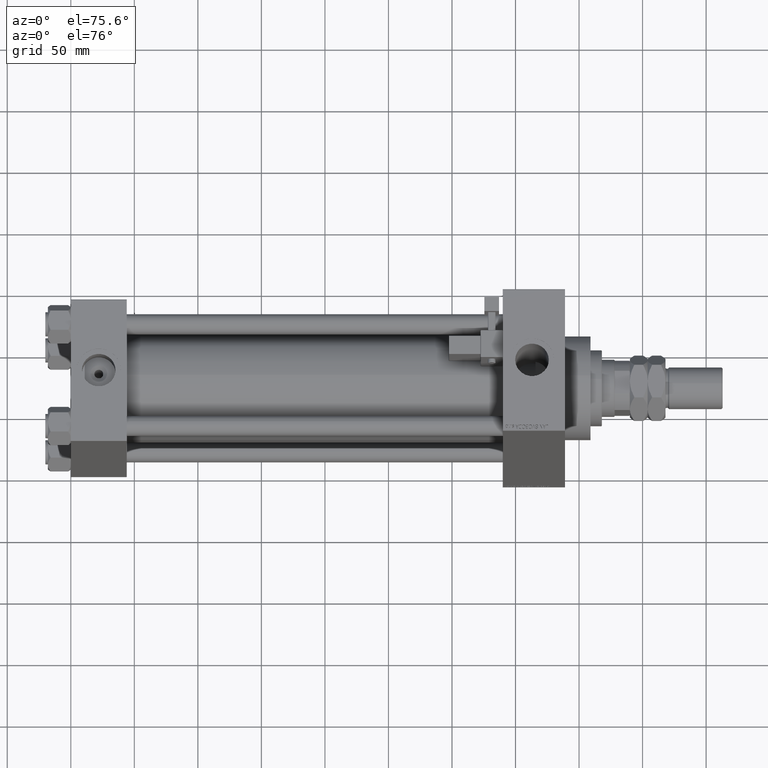
[diagram: clean part render]
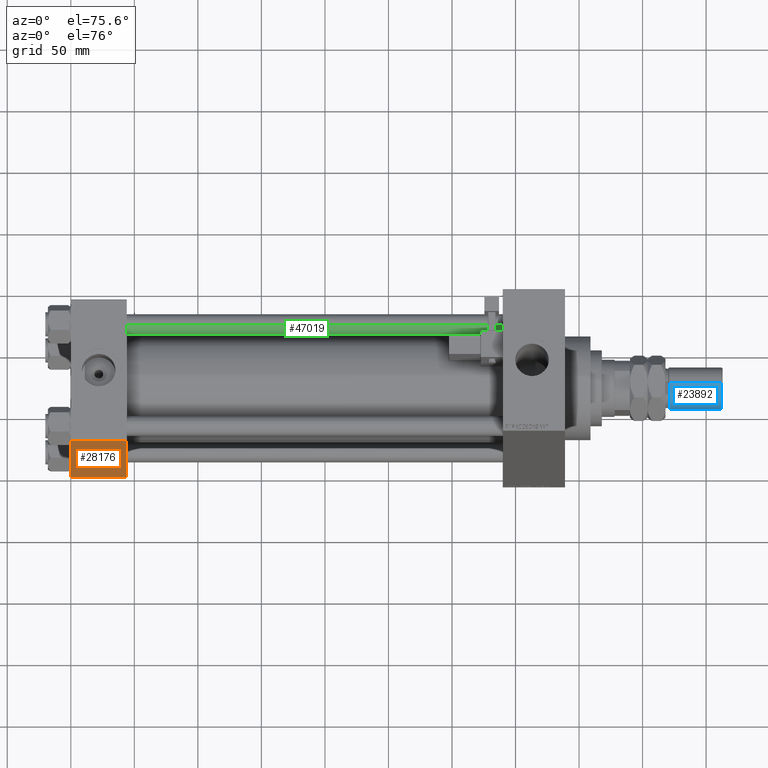
[diagram: same view with three faces highlighted in distinct colors, each labeled with its STEP entity id]
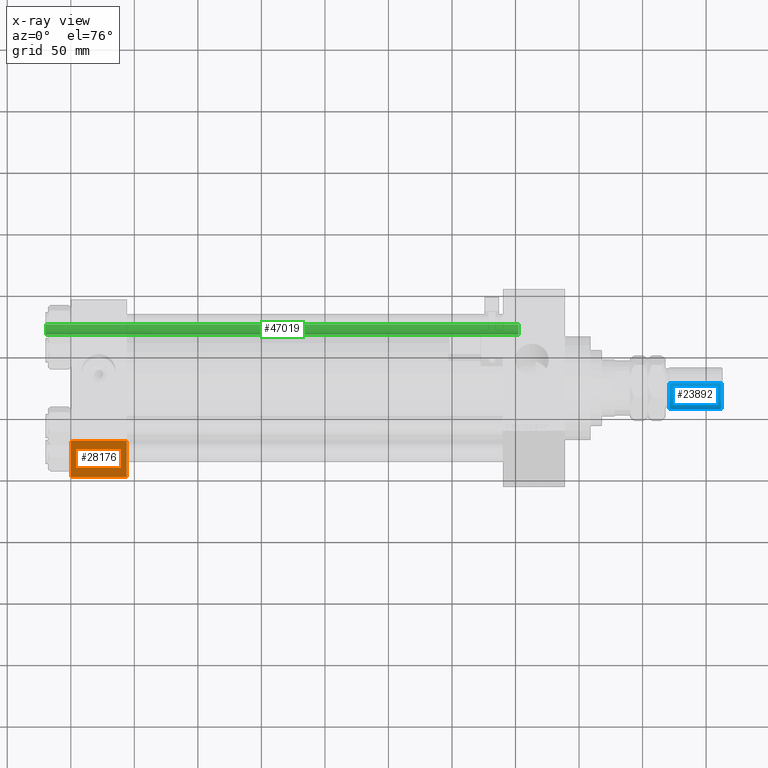
[diagram: x-ray of the same camera — body ghosted, the three highlighted faces saturated]
A machine part, auxiliary view with three faces highlighted in distinct colors.
The next image is the same camera in x-ray (body ghosted, the three faces saturated) — at least one of them is partly hidden behind the body in this view.
Their STEP definitions:

[orange] entity #28176 — the highlighted planar face has unit normal (0, 1, 0).
#91 = ORIENTED_EDGE ( 'NONE', *, *, #37428, .T. ) ;
#1053 = FACE_OUTER_BOUND ( 'NONE', #32362, .T. ) ;
#2360 = EDGE_CURVE ( 'NONE', #14752, #27990, #5626, .T. ) ;
#3387 = CARTESIAN_POINT ( 'NONE',  ( 44.00000000000000000, -57.50000000000000711, 57.00000000000000711 ) ) ;
#5626 = LINE ( 'NONE', #33544, #9493 ) ;
#6625 = ORIENTED_EDGE ( 'NONE', *, *, #2360, .T. ) ;
#9493 = VECTOR ( 'NONE', #29756, 1000.000000000000000 ) ;
#10677 = AXIS2_PLACEMENT_3D ( 'NONE', #21101, #17035, #25169 ) ;
#14148 = VERTEX_POINT ( 'NONE', #32527 ) ;
#14752 = VERTEX_POINT ( 'NONE', #3387 ) ;
#16771 = PLANE ( 'NONE',  #10677 ) ;
#17035 = DIRECTION ( 'NONE',  ( -0.000000000000000000, 1.000000000000000000, 0.000000000000000000 ) ) ;
#19566 = VECTOR ( 'NONE', #26390, 1000.000000000000000 ) ;
#21101 = CARTESIAN_POINT ( 'NONE',  ( 44.00000000000000000, -57.50000000000000711, 57.49999999999999289 ) ) ;
#21576 = ORIENTED_EDGE ( 'NONE', *, *, #30651, .F. ) ;
#25169 = DIRECTION ( 'NONE',  ( 0.000000000000000000, -0.000000000000000000, 1.000000000000000000 ) ) ;
#25913 = LINE ( 'NONE', #38686, #33035 ) ;
#26390 = DIRECTION ( 'NONE',  ( 0.000000000000000000, 0.000000000000000000, -1.000000000000000000 ) ) ;
#27990 = VERTEX_POINT ( 'NONE', #30906 ) ;
#28107 = VECTOR ( 'NONE', #42801, 1000.000000000000000 ) ;
#28176 = ADVANCED_FACE ( 'NONE', ( #1053 ), #16771, .F. ) ;
#29756 = DIRECTION ( 'NONE',  ( -1.000000000000000000, 0.000000000000000000, 0.000000000000000000 ) ) ;
#30651 = EDGE_CURVE ( 'NONE', #14752, #41868, #34099, .T. ) ;
#30906 = CARTESIAN_POINT ( 'NONE',  ( 0.000000000000000000, -57.50000000000000711, 57.00000000000000711 ) ) ;
#30985 = CARTESIAN_POINT ( 'NONE',  ( 0.000000000000000000, -57.50000000000000711, 57.49999999999999289 ) ) ;
#32362 = EDGE_LOOP ( 'NONE', ( #91, #35747, #21576, #6625 ) ) ;
#32527 = CARTESIAN_POINT ( 'NONE',  ( 0.000000000000000000, -57.50000000000000711, -57.00000000000000711 ) ) ;
#33035 = VECTOR ( 'NONE', #50914, 1000.000000000000000 ) ;
#33544 = CARTESIAN_POINT ( 'NONE',  ( 44.00000000000000000, -57.50000000000000711, 57.00000000000000711 ) ) ;
#34099 = LINE ( 'NONE', #34890, #28107 ) ;
#34890 = CARTESIAN_POINT ( 'NONE',  ( 44.00000000000000000, -57.50000000000000711, 57.49999999999999289 ) ) ;
#35747 = ORIENTED_EDGE ( 'NONE', *, *, #47959, .T. ) ;
#37428 = EDGE_CURVE ( 'NONE', #27990, #14148, #51661, .T. ) ;
#38686 = CARTESIAN_POINT ( 'NONE',  ( 44.00000000000000000, -57.50000000000000711, -57.00000000000000711 ) ) ;
#41868 = VERTEX_POINT ( 'NONE', #42099 ) ;
#42099 = CARTESIAN_POINT ( 'NONE',  ( 44.00000000000000000, -57.50000000000000711, -57.00000000000000711 ) ) ;
#42801 = DIRECTION ( 'NONE',  ( 0.000000000000000000, 0.000000000000000000, -1.000000000000000000 ) ) ;
#47959 = EDGE_CURVE ( 'NONE', #14148, #41868, #25913, .T. ) ;
#50914 = DIRECTION ( 'NONE',  ( 1.000000000000000000, 0.000000000000000000, 0.000000000000000000 ) ) ;
#51661 = LINE ( 'NONE', #30985, #19566 ) ;

[blue] entity #23892 — the highlighted cylindrical surface (edge-blend (fillet) strip) has radius 16.5 mm, axis along (-1, -0, 0).
#58 = CIRCLE ( 'NONE', #22561, 16.50000000000000000 ) ;
#2723 = DIRECTION ( 'NONE',  ( 1.000000000000000000, 0.000000000000000000, 0.000000000000000000 ) ) ;
#4153 = ORIENTED_EDGE ( 'NONE', *, *, #9476, .T. ) ;
#5321 = EDGE_LOOP ( 'NONE', ( #39465, #4153, #8407, #49416 ) ) ;
#7318 = CARTESIAN_POINT ( 'NONE',  ( 16.50000000000000000, 2.020667218593133100E-15, 73.00000000000000000 ) ) ;
#7448 = EDGE_CURVE ( 'NONE', #42802, #23844, #58, .T. ) ;
#8407 = ORIENTED_EDGE ( 'NONE', *, *, #47444, .T. ) ;
#9476 = EDGE_CURVE ( 'NONE', #11885, #51486, #30441, .T. ) ;
#9612 = AXIS2_PLACEMENT_3D ( 'NONE', #36720, #44863, #27490 ) ;
#11885 = VERTEX_POINT ( 'NONE', #37027 ) ;
#13232 = CARTESIAN_POINT ( 'NONE',  ( -16.50000000000000000, 0.000000000000000000, 72.00000000000000000 ) ) ;
#15990 = DIRECTION ( 'NONE',  ( -0.000000000000000000, -0.000000000000000000, -1.000000000000000000 ) ) ;
#16094 = CYLINDRICAL_SURFACE ( 'NONE', #9612, 16.50000000000000000 ) ;
#17832 = EDGE_CURVE ( 'NONE', #11885, #23844, #40423, .T. ) ;
#18319 = VECTOR ( 'NONE', #25577, 1000.000000000000000 ) ;
#22561 = AXIS2_PLACEMENT_3D ( 'NONE', #43954, #24099, #2723 ) ;
#23844 = VERTEX_POINT ( 'NONE', #36441 ) ;
#23892 = ADVANCED_FACE ( 'NONE', ( #31563 ), #16094, .T. ) ;
#24099 = DIRECTION ( 'NONE',  ( -0.000000000000000000, -0.000000000000000000, 1.000000000000000000 ) ) ;
#25577 = DIRECTION ( 'NONE',  ( -0.000000000000000000, -0.000000000000000000, -1.000000000000000000 ) ) ;
#27490 = DIRECTION ( 'NONE',  ( -1.000000000000000000, 0.000000000000000000, 0.000000000000000000 ) ) ;
#30441 = CIRCLE ( 'NONE', #53001, 16.50000000000000000 ) ;
#31563 = FACE_OUTER_BOUND ( 'NONE', #5321, .T. ) ;
#34209 = DIRECTION ( 'NONE',  ( 1.000000000000000000, 0.000000000000000000, 0.000000000000000000 ) ) ;
#36441 = CARTESIAN_POINT ( 'NONE',  ( 16.50000000000000000, 2.020667218593133100E-15, 30.99999999999998579 ) ) ;
#36720 = CARTESIAN_POINT ( 'NONE',  ( 0.000000000000000000, 0.000000000000000000, 73.00000000000000000 ) ) ;
#37021 = CARTESIAN_POINT ( 'NONE',  ( -16.50000000000000000, 0.000000000000000000, 30.99999999999998579 ) ) ;
#37027 = CARTESIAN_POINT ( 'NONE',  ( 16.50000000000000000, 2.020667218593133100E-15, 72.00000000000000000 ) ) ;
#38344 = LINE ( 'NONE', #50575, #18319 ) ;
#39465 = ORIENTED_EDGE ( 'NONE', *, *, #17832, .F. ) ;
#40423 = LINE ( 'NONE', #7318, #50269 ) ;
#42361 = CARTESIAN_POINT ( 'NONE',  ( 0.000000000000000000, 0.000000000000000000, 72.00000000000000000 ) ) ;
#42802 = VERTEX_POINT ( 'NONE', #37021 ) ;
#43954 = CARTESIAN_POINT ( 'NONE',  ( 0.000000000000000000, 0.000000000000000000, 30.99999999999998579 ) ) ;
#44863 = DIRECTION ( 'NONE',  ( -0.000000000000000000, -0.000000000000000000, -1.000000000000000000 ) ) ;
#46460 = DIRECTION ( 'NONE',  ( 0.000000000000000000, 0.000000000000000000, -1.000000000000000000 ) ) ;
#47444 = EDGE_CURVE ( 'NONE', #51486, #42802, #38344, .T. ) ;
#49416 = ORIENTED_EDGE ( 'NONE', *, *, #7448, .T. ) ;
#50269 = VECTOR ( 'NONE', #15990, 1000.000000000000000 ) ;
#50575 = CARTESIAN_POINT ( 'NONE',  ( -16.50000000000000000, 0.000000000000000000, 73.00000000000000000 ) ) ;
#51486 = VERTEX_POINT ( 'NONE', #13232 ) ;
#53001 = AXIS2_PLACEMENT_3D ( 'NONE', #42361, #46460, #34209 ) ;

[green] entity #47019 — the highlighted cylindrical surface (edge-blend (fillet) strip) has radius 8 mm, axis along (-1, -0, 0).
#2704 = VERTEX_POINT ( 'NONE', #38650 ) ;
#5696 = DIRECTION ( 'NONE',  ( 0.000000000000000000, 0.000000000000000000, -1.000000000000000000 ) ) ;
#8564 = CARTESIAN_POINT ( 'NONE',  ( 8.000000000000000000, 9.797174393178825657E-16, 0.5000000000000559552 ) ) ;
#8722 = AXIS2_PLACEMENT_3D ( 'NONE', #36798, #53630, #49844 ) ;
#10267 = CARTESIAN_POINT ( 'NONE',  ( 0.000000000000000000, 0.000000000000000000, 372.5000000000000000 ) ) ;
#11916 = LINE ( 'NONE', #50193, #52417 ) ;
#13556 = DIRECTION ( 'NONE',  ( 1.000000000000000000, 0.000000000000000000, 0.000000000000000000 ) ) ;
#13626 = VERTEX_POINT ( 'NONE', #16442 ) ;
#13874 = AXIS2_PLACEMENT_3D ( 'NONE', #16270, #32806, #13556 ) ;
#14128 = CARTESIAN_POINT ( 'NONE',  ( -8.000000000000000000, 0.000000000000000000, 373.0000000000000000 ) ) ;
#14785 = EDGE_LOOP ( 'NONE', ( #45462, #22651, #40371, #37879 ) ) ;
#15991 = DIRECTION ( 'NONE',  ( -0.000000000000000000, -0.000000000000000000, -1.000000000000000000 ) ) ;
#16270 = CARTESIAN_POINT ( 'NONE',  ( 0.000000000000000000, 0.000000000000000000, 0.5000000000000559552 ) ) ;
#16442 = CARTESIAN_POINT ( 'NONE',  ( 8.000000000000000000, 9.797174393178825657E-16, 372.5000000000000000 ) ) ;
#22216 = DIRECTION ( 'NONE',  ( 1.000000000000000000, 0.000000000000000000, 0.000000000000000000 ) ) ;
#22651 = ORIENTED_EDGE ( 'NONE', *, *, #53137, .T. ) ;
#24298 = FACE_OUTER_BOUND ( 'NONE', #14785, .T. ) ;
#24629 = VERTEX_POINT ( 'NONE', #8564 ) ;
#25484 = CIRCLE ( 'NONE', #48010, 8.000000000000000000 ) ;
#26337 = EDGE_CURVE ( 'NONE', #2704, #29840, #27124, .T. ) ;
#27124 = LINE ( 'NONE', #14128, #27909 ) ;
#27718 = CIRCLE ( 'NONE', #13874, 8.000000000000000000 ) ;
#27909 = VECTOR ( 'NONE', #35255, 1000.000000000000000 ) ;
#28368 = CYLINDRICAL_SURFACE ( 'NONE', #8722, 8.000000000000000000 ) ;
#29840 = VERTEX_POINT ( 'NONE', #33753 ) ;
#32806 = DIRECTION ( 'NONE',  ( -0.000000000000000000, -0.000000000000000000, 1.000000000000000000 ) ) ;
#33753 = CARTESIAN_POINT ( 'NONE',  ( -8.000000000000000000, 0.000000000000000000, 0.5000000000000559552 ) ) ;
#34413 = EDGE_CURVE ( 'NONE', #13626, #24629, #11916, .T. ) ;
#35255 = DIRECTION ( 'NONE',  ( -0.000000000000000000, -0.000000000000000000, -1.000000000000000000 ) ) ;
#36798 = CARTESIAN_POINT ( 'NONE',  ( 0.000000000000000000, 0.000000000000000000, 373.0000000000000000 ) ) ;
#37879 = ORIENTED_EDGE ( 'NONE', *, *, #44410, .T. ) ;
#38650 = CARTESIAN_POINT ( 'NONE',  ( -8.000000000000000000, 0.000000000000000000, 372.5000000000000000 ) ) ;
#40371 = ORIENTED_EDGE ( 'NONE', *, *, #26337, .T. ) ;
#44410 = EDGE_CURVE ( 'NONE', #29840, #24629, #27718, .T. ) ;
#45462 = ORIENTED_EDGE ( 'NONE', *, *, #34413, .F. ) ;
#47019 = ADVANCED_FACE ( 'NONE', ( #24298 ), #28368, .T. ) ;
#48010 = AXIS2_PLACEMENT_3D ( 'NONE', #10267, #5696, #22216 ) ;
#49844 = DIRECTION ( 'NONE',  ( -1.000000000000000000, 0.000000000000000000, 0.000000000000000000 ) ) ;
#50193 = CARTESIAN_POINT ( 'NONE',  ( 8.000000000000000000, 9.797174393178825657E-16, 373.0000000000000000 ) ) ;
#52417 = VECTOR ( 'NONE', #15991, 1000.000000000000000 ) ;
#53137 = EDGE_CURVE ( 'NONE', #13626, #2704, #25484, .T. ) ;
#53630 = DIRECTION ( 'NONE',  ( -0.000000000000000000, -0.000000000000000000, -1.000000000000000000 ) ) ;